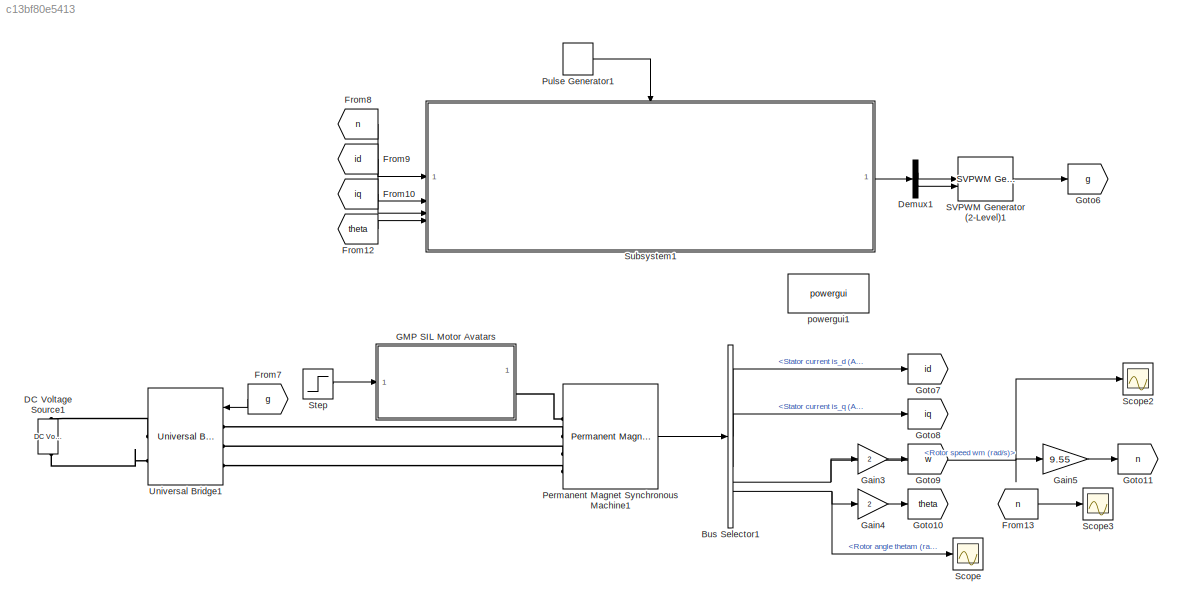
MODEL slx_c13bf80e5413
KIND model
CONFIG AbsTol = auto
CONFIG EnableMultiTasking = off
CONFIG FixedStep = 1e-6
CONFIG MaxStep = auto
CONFIG MinStep = auto
CONFIG RelTol = 1e-3
CONFIG SampleTimeConstraint = Unconstrained
CONFIG SolverName = FixedStepAuto
CONFIG StartTime = 0.0
CONFIG StopTime = 0.1
BLOCK [BusSelector] Bus Selector1
  OutputSignals = Stator current is_d (A),Stator current is_q (A),Rotor speed wm (rad/s),Rotor angle thetam (rad)
BLOCK [Reference] DC Voltage Source1  REF=spsDCVoltageSourceLib/DC Voltage Source
  LibrarySourceBlock = sps_lib/Sources/DC Voltage Source
  SourceBlock = spsDCVoltageSourceLib/DC Voltage Source
  SourceType = DC Voltage Source
BLOCK [Demux] Demux1
  Outputs = 2
BLOCK [From] From10
  GotoTag = iq
BLOCK [From] From12
  GotoTag = theta
BLOCK [From] From13
  GotoTag = n
BLOCK [From] From7
  GotoTag = g
  NameLocation = top
BLOCK [From] From8
  GotoTag = n
BLOCK [From] From9
  GotoTag = id
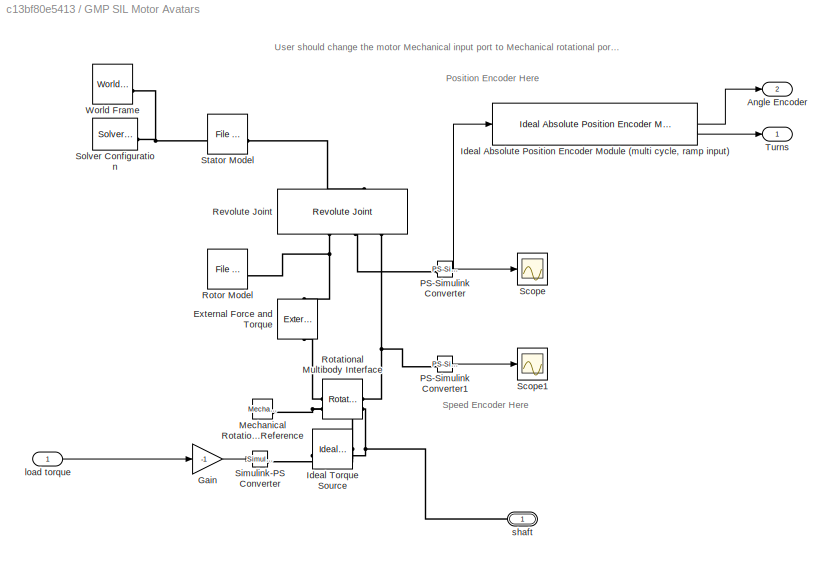
BLOCK [SubSystem] GMP SIL Motor Avatars
  PortSchema = {"entries":[{"content":{"sides":[{"content":{"connectorIds":["In1"]},"type":"ConnectorPlacement.EquallySpacedRectSide","uuid":"93fd98c8-22a3-43d8-9c64-5fedb21a7bba"},{"content":{"connectorIds":["RConn1"],"side":"RIGHT"},"type":"ConnectorPlacement.EquallySpacedRectSide","uuid":"d117f16d-9ccc-4fe6-b623-9fd4cd524b7a"},{"content":{"connectorIds":["Out1","Out2"],"side":"TOP"},"type":"ConnectorPlacement...<+255ch>
BLOCK [Outport] GMP SIL Motor Avatars/Angle Encoder
  Port = 2
BLOCK [Reference] GMP SIL Motor Avatars/External Force and Torque  REF=sm_lib/Forces and
Torques/External Force
and Torque
  NameLocation = right
  SourceBlock = sm_lib/Forces and\nTorques/External Force\nand Torque
  SourceType = External Force\nand Torque
BLOCK [Gain] GMP SIL Motor Avatars/Gain
  Gain = -1
BLOCK [Reference] GMP SIL Motor Avatars/Ideal Absolute Position Encoder Module (multi cycle, ramp input)  REF=peripheral_utilities/Ideal Absolute Position Encoder Module (multi cycle, ramp input)
  SourceBlock = peripheral_utilities/Ideal Absolute Position Encoder Module (multi cycle, ramp input)
  SourceProductName = Virtual Peripheral Utilities
BLOCK [Reference] GMP SIL Motor Avatars/Ideal Torque Source  REF=fl_lib/Mechanical/Mechanical Sources/Ideal Torque Source
  NameLocation = top
  SourceBlock = fl_lib/Mechanical/Mechanical Sources/Ideal Torque Source
  SourceType = Ideal Torque Source
BLOCK [Reference] GMP SIL Motor Avatars/Mechanical Rotational Reference  REF=fl_lib/Mechanical/Rotational Elements/Mechanical
Rotational Reference
  SourceBlock = fl_lib/Mechanical/Rotational Elements/Mechanical\nRotational Reference
  SourceType = Mechanical\nRotational Reference
BLOCK [Reference] GMP SIL Motor Avatars/PS-Simulink Converter  REF=nesl_utility/PS-Simulink
Converter
  SourceBlock = nesl_utility/PS-Simulink\nConverter
  SourceType = PS-Simulink\nConverter
BLOCK [Reference] GMP SIL Motor Avatars/PS-Simulink Converter1  REF=nesl_utility/PS-Simulink
Converter
  SourceBlock = nesl_utility/PS-Simulink\nConverter
  SourceType = PS-Simulink\nConverter
BLOCK [Reference] GMP SIL Motor Avatars/Revolute Joint  REF=sm_lib/Joints/Revolute Joint
  NameLocation = left
  SourceBlock = sm_lib/Joints/Revolute Joint
  SourceType = Revolute Joint
BLOCK [Reference] GMP SIL Motor Avatars/Rotational Multibody Interface  REF=fl_lib/Mechanical/Multibody Interfaces/Rotational Multibody
Interface
  SourceBlock = fl_lib/Mechanical/Multibody Interfaces/Rotational Multibody\nInterface
  SourceType = Rotational Multibody\nInterface
BLOCK [Reference] GMP SIL Motor Avatars/Rotor Model  REF=sm_lib/Body Elements/File Solid
  SourceBlock = sm_lib/Body Elements/File Solid
  SourceType = File Solid
BLOCK [Scope] GMP SIL Motor Avatars/Scope
  Floating = off
  NumInputPorts = 1
  ScopeSpecificationString = Simulink.scopes.TimeScopeBlockCfg('CurrentConfiguration', extmgr.ConfigurationSet(extmgr.Configuration('Core','General UI',true),extmgr.Configuration('Core','Source UI',true),extmgr.Configuration('Sources','WiredSimulink',true),extmgr.Configuration('Visuals','Time Domain',true,'SerializedDisplays',{struct('MinYLimReal','-1.07252','MaxYLimReal','9.6527','YLabelReal','','MinYLimMag','0.00000','MaxYL...<+1484ch>
BLOCK [Scope] GMP SIL Motor Avatars/Scope1
  Floating = off
  NumInputPorts = 1
  ScopeSpecificationString = Simulink.scopes.TimeScopeBlockCfg('CurrentConfiguration', extmgr.ConfigurationSet(extmgr.Configuration('Core','General UI',true),extmgr.Configuration('Core','Source UI',true),extmgr.Configuration('Sources','WiredSimulink',true,'DataLoggingVariableName','ScopeData1'),extmgr.Configuration('Visuals','Time Domain',true,'SerializedDisplays',{struct('MinYLimReal','-16.06081','MaxYLimReal','144.54728','Y...<+1557ch>
BLOCK [Reference] GMP SIL Motor Avatars/Simulink-PS Converter  REF=nesl_utility/Simulink-PS
Converter
  SourceBlock = nesl_utility/Simulink-PS\nConverter
  SourceType = Simulink-PS\nConverter
BLOCK [Reference] GMP SIL Motor Avatars/Solver Configuration  REF=nesl_utility/Solver
Configuration
  SourceBlock = nesl_utility/Solver\nConfiguration
  SourceType = Solver\nConfiguration
BLOCK [Reference] GMP SIL Motor Avatars/Stator Model  REF=sm_lib/Body Elements/File Solid
  SourceBlock = sm_lib/Body Elements/File Solid
  SourceType = File Solid
BLOCK [Outport] GMP SIL Motor Avatars/Turns
BLOCK [Reference] GMP SIL Motor Avatars/World Frame  REF=sm_lib/Frames and
Transforms/World Frame
  SourceBlock = sm_lib/Frames and\nTransforms/World Frame
  SourceType = World Frame
BLOCK [Inport] GMP SIL Motor Avatars/load torque
BLOCK [PMIOPort] GMP SIL Motor Avatars/shaft
  Side = Right
BLOCK [Gain] Gain3
  Gain = 2
BLOCK [Gain] Gain4
  Gain = 2
BLOCK [Gain] Gain5
  Gain = 9.55
BLOCK [Goto] Goto10
  GotoTag = theta
BLOCK [Goto] Goto11
  GotoTag = n
BLOCK [Goto] Goto6
  GotoTag = g
BLOCK [Goto] Goto7
  GotoTag = id
BLOCK [Goto] Goto8
  GotoTag = iq
BLOCK [Goto] Goto9
  GotoTag = w
BLOCK [Reference] Permanent Magnet Synchronous Machine1  REF=spsPermanentMagnetSynchronousMachineLib/Permanent Magnet
Synchronous Machine
  LibrarySourceBlock = sps_lib/Electrical Machines/Permanent Magnet\nSynchronous Machine
  SourceBlock = spsPermanentMagnetSynchronousMachineLib/Permanent Magnet\nSynchronous Machine
  SourceType = Permanent Magnet Synchronous Machine
BLOCK [DiscretePulseGenerator] Pulse Generator1
  Period = 1e-4
  PhaseDelay = 0.5e-4
  PulseType = Time based
  PulseWidth = 5
BLOCK [Reference] SVPWM Generator (2-Level)1  REF=spsSVPWMGenerator2LevelLib/SVPWM Generator
(2-Level)
  LibrarySourceBlock = sps_lib/Power Electronics/Power Electronics Control/SVPWM Generator\n(2-Level)
  SourceBlock = spsSVPWMGenerator2LevelLib/SVPWM Generator\n(2-Level)
  SourceType = SVPWM Generator (2-Level)
BLOCK [Scope] Scope
  Floating = off
  NumInputPorts = 1
  ScopeSpecificationString = Simulink.scopes.TimeScopeBlockCfg('CurrentConfiguration', extmgr.ConfigurationSet(extmgr.Configuration('Core','General UI',true),extmgr.Configuration('Core','Source UI',true),extmgr.Configuration('Sources','WiredSimulink',true,'DataLoggingVariableName','ScopeData1'),extmgr.Configuration('Visuals','Time Domain',true,'SerializedDisplays',{struct('MinYLimReal','-1.06372','MaxYLimReal','9.57346','YLab...<+1529ch>
BLOCK [Scope] Scope2
  Floating = off
  NumInputPorts = 1
  ScopeSpecificationString = Simulink.scopes.TimeScopeBlockCfg('CurrentConfiguration', extmgr.ConfigurationSet(extmgr.Configuration('Core','General UI',true),extmgr.Configuration('Core','Source UI',true),extmgr.Configuration('Sources','WiredSimulink',true,'DataLoggingVariableName','ScopeData2'),extmgr.Configuration('Visuals','Time Domain',true,'SerializedDisplays',{struct('MinYLimReal','-12.71075','MaxYLimReal','114.39675','Y...<+1513ch>
BLOCK [Scope] Scope3
  Floating = off
  NumInputPorts = 1
  ScopeSpecificationString = Simulink.scopes.TimeScopeBlockCfg('CurrentConfiguration', extmgr.ConfigurationSet(extmgr.Configuration('Core','General UI',true),extmgr.Configuration('Core','Source UI',true),extmgr.Configuration('Sources','WiredSimulink',true,'DataLoggingVariableName','ScopeData3'),extmgr.Configuration('Visuals','Time Domain',true,'SerializedDisplays',{struct('MinYLimReal','-123.16954','MaxYLimReal','1108.52582',...<+1503ch>
BLOCK [Step] Step
  SampleTime = 0
  Time = 0.05
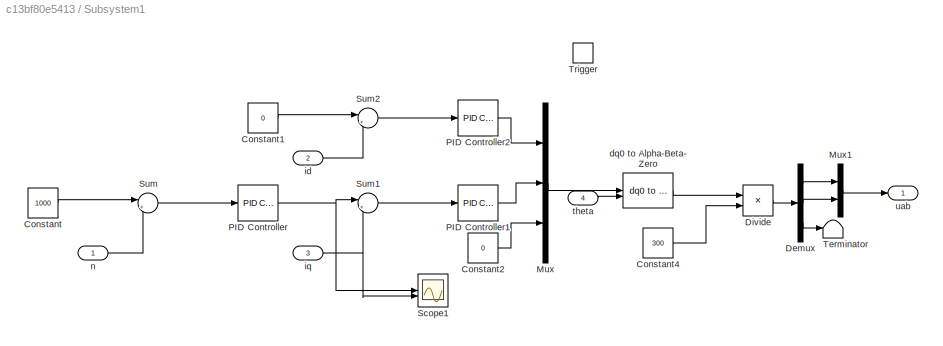
BLOCK [SubSystem] Subsystem1
BLOCK [Constant] Subsystem1/Constant
  Value = 1000
BLOCK [Constant] Subsystem1/Constant1
  Value = 0
BLOCK [Constant] Subsystem1/Constant2
  Value = 0
BLOCK [Constant] Subsystem1/Constant4
  Value = 300
BLOCK [Demux] Subsystem1/Demux
  Outputs = 3
BLOCK [Product] Subsystem1/Divide
  Inputs = */
BLOCK [Mux] Subsystem1/Mux
  DisplayOption = bar
  Inputs = 3
BLOCK [Mux] Subsystem1/Mux1
  DisplayOption = bar
  Inputs = 2
BLOCK [Reference] Subsystem1/PID Controller  REF=slpidlib/PID Controller
  LibrarySourceBlock = simulink/Continuous/PID Controller
  SourceBlock = slpidlib/PID Controller
  SourceType = PID 1dof
BLOCK [Reference] Subsystem1/PID Controller1  REF=slpidlib/PID Controller
  LibrarySourceBlock = simulink/Continuous/PID Controller
  SourceBlock = slpidlib/PID Controller
  SourceType = PID 1dof
BLOCK [Reference] Subsystem1/PID Controller2  REF=slpidlib/PID Controller
  LibrarySourceBlock = simulink/Continuous/PID Controller
  SourceBlock = slpidlib/PID Controller
  SourceType = PID 1dof
BLOCK [Scope] Subsystem1/Scope1
  Floating = off
  NumInputPorts = 2
  ScopeSpecificationString = Simulink.scopes.TimeScopeBlockCfg('CurrentConfiguration', extmgr.ConfigurationSet(extmgr.Configuration('Core','General UI',true),extmgr.Configuration('Core','Source UI',true),extmgr.Configuration('Sources','WiredSimulink',true,'DataLoggingVariableName','ScopeData1'),extmgr.Configuration('Visuals','Time Domain',true,'SerializedDisplays',{struct('MinYLimReal','-2.39115','MaxYLimReal','11.37679','YLa...<+1382ch>
BLOCK [Sum] Subsystem1/Sum
  Inputs = |+-
BLOCK [Sum] Subsystem1/Sum1
  Inputs = |+-
BLOCK [Sum] Subsystem1/Sum2
  Inputs = |+-
BLOCK [Terminator] Subsystem1/Terminator
BLOCK [TriggerPort] Subsystem1/Trigger
  PortDimensions = 1
  StatesWhenEnabling = held
  VariantControl = (inherit)
BLOCK [Reference] Subsystem1/dq0 to Alpha-Beta-Zero  REF=spsdq0toAlphaBetaZeroLib/dq0 to
Alpha-Beta-Zero
  LibrarySourceBlock = sps_lib/Control/dq0 to\nAlpha-Beta-Zero
  SourceBlock = spsdq0toAlphaBetaZeroLib/dq0 to\nAlpha-Beta-Zero
  SourceType = dq0 to Alpha-Beta-Zero Transformation
BLOCK [Inport] Subsystem1/id
  Port = 2
BLOCK [Inport] Subsystem1/iq
  Port = 3
BLOCK [Inport] Subsystem1/n
BLOCK [Inport] Subsystem1/theta
  Port = 4
BLOCK [Outport] Subsystem1/uab
BLOCK [Reference] Universal Bridge1  REF=spsUniversalBridgeLib/Universal Bridge
  LibrarySourceBlock = sps_lib/Power Electronics/Universal Bridge
  SourceBlock = spsUniversalBridgeLib/Universal Bridge
  SourceType = Universal Bridge
BLOCK [Reference] powergui1  REF=sps_lib/powergui
  LibrarySourceBlock = sps_lib/powergui
  Priority = 1
  SourceBlock = sps_lib/powergui
  SourceType = PSB option menu block
ANNOTATION GMP SIL Motor Avatars: Position Encoder Here
ANNOTATION GMP SIL Motor Avatars: Speed Encoder Here
ANNOTATION GMP SIL Motor Avatars: User should change the motor Mechanical input port to Mechanical rotational port first.
LINE Bus Selector1:1 -> Goto7:1
LINE Bus Selector1:2 -> Goto8:1
NET Bus Selector1:3 -> Gain3:1, Gain5:1, Scope2:1
NET Bus Selector1:4 -> Gain4:1, Scope:1
LINE Demux1:1 -> SVPWM Generator (2-Level)1:1
LINE Demux1:2 -> SVPWM Generator (2-Level)1:2
LINE From10:1 -> Subsystem1:3
LINE From12:1 -> Subsystem1:4
LINE From13:1 -> Scope3:1
LINE From7:1 -> Universal Bridge1:1
LINE From8:1 -> Subsystem1:1
LINE From9:1 -> Subsystem1:2
LINE GMP SIL Motor Avatars/Gain:1 -> GMP SIL Motor Avatars/Simulink-PS Converter:1
LINE GMP SIL Motor Avatars/Ideal Absolute Position Encoder Module (multi cycle, ramp input):1 -> GMP SIL Motor Avatars/Angle Encoder:1
LINE GMP SIL Motor Avatars/Ideal Absolute Position Encoder Module (multi cycle, ramp input):2 -> GMP SIL Motor Avatars/Turns:1
LINE GMP SIL Motor Avatars/PS-Simulink Converter1:1 -> GMP SIL Motor Avatars/Scope1:1
NET GMP SIL Motor Avatars/PS-Simulink Converter:1 -> GMP SIL Motor Avatars/Ideal Absolute Position Encoder Module (multi cycle, ramp input):1, GMP SIL Motor Avatars/Scope:1
LINE GMP SIL Motor Avatars/load torque:1 -> GMP SIL Motor Avatars/Gain:1
LINE Gain3:1 -> Goto9:1
LINE Gain4:1 -> Goto10:1
LINE Gain5:1 -> Goto11:1
LINE Permanent Magnet Synchronous Machine1:1 -> Bus Selector1:1
LINE Pulse Generator1:1 -> Subsystem1:trigger
LINE SVPWM Generator (2-Level)1:1 -> Goto6:1
LINE Step:1 -> GMP SIL Motor Avatars:1
LINE Subsystem1/Constant1:1 -> Subsystem1/Sum2:1
LINE Subsystem1/Constant2:1 -> Subsystem1/Mux:3
LINE Subsystem1/Constant4:1 -> Subsystem1/Divide:2
LINE Subsystem1/Constant:1 -> Subsystem1/Sum:1
LINE Subsystem1/Demux:1 -> Subsystem1/Mux1:1
LINE Subsystem1/Demux:2 -> Subsystem1/Mux1:2
LINE Subsystem1/Demux:3 -> Subsystem1/Terminator:1
LINE Subsystem1/Divide:1 -> Subsystem1/Demux:1
LINE Subsystem1/Mux1:1 -> Subsystem1/uab:1
LINE Subsystem1/Mux:1 -> Subsystem1/dq0 to Alpha-Beta-Zero:1
LINE Subsystem1/PID Controller1:1 -> Subsystem1/Mux:2
LINE Subsystem1/PID Controller2:1 -> Subsystem1/Mux:1
NET Subsystem1/PID Controller:1 -> Subsystem1/Scope1:1, Subsystem1/Sum1:1
LINE Subsystem1/Sum1:1 -> Subsystem1/PID Controller1:1
LINE Subsystem1/Sum2:1 -> Subsystem1/PID Controller2:1
LINE Subsystem1/Sum:1 -> Subsystem1/PID Controller:1
LINE Subsystem1/dq0 to Alpha-Beta-Zero:1 -> Subsystem1/Divide:1
LINE Subsystem1/id:1 -> Subsystem1/Sum2:2
NET Subsystem1/iq:1 -> Subsystem1/Scope1:2, Subsystem1/Sum1:2
LINE Subsystem1/n:1 -> Subsystem1/Sum:2
LINE Subsystem1/theta:1 -> Subsystem1/dq0 to Alpha-Beta-Zero:2
LINE Subsystem1:1 -> Demux1:1
PLINE DC Voltage Source1:LConn1 -- Universal Bridge1:RConn2
PLINE DC Voltage Source1:RConn1 -- Universal Bridge1:RConn1
PLINE GMP SIL Motor Avatars/External Force and Torque:LConn1 -- GMP SIL Motor Avatars/Rotational Multibody Interface:LConn1
PNET net1: GMP SIL Motor Avatars/External Force and Torque:RConn1 -- GMP SIL Motor Avatars/Revolute Joint:RConn1 -- GMP SIL Motor Avatars/Rotor Model:LConn1
PNET net2: GMP SIL Motor Avatars/Ideal Torque Source:LConn1 -- GMP SIL Motor Avatars/Rotational Multibody Interface:RConn2 -- GMP SIL Motor Avatars/shaft:RConn1
PLINE GMP SIL Motor Avatars/Ideal Torque Source:RConn1 -- GMP SIL Motor Avatars/Simulink-PS Converter:RConn1
PNET net3: GMP SIL Motor Avatars/Ideal Torque Source:RConn2 -- GMP SIL Motor Avatars/Mechanical Rotational Reference:LConn1 -- GMP SIL Motor Avatars/Rotational Multibody Interface:LConn2
PNET net4: GMP SIL Motor Avatars/PS-Simulink Converter1:LConn1 -- GMP SIL Motor Avatars/Revolute Joint:RConn3 -- GMP SIL Motor Avatars/Rotational Multibody Interface:RConn1
PLINE GMP SIL Motor Avatars/PS-Simulink Converter:LConn1 -- GMP SIL Motor Avatars/Revolute Joint:RConn2
PLINE GMP SIL Motor Avatars/Revolute Joint:LConn1 -- GMP SIL Motor Avatars/Stator Model:LConn1
PNET net5: GMP SIL Motor Avatars/Solver Configuration:RConn1 -- GMP SIL Motor Avatars/Stator Model:RConn1 -- GMP SIL Motor Avatars/World Frame:RConn1
PLINE GMP SIL Motor Avatars:RConn1 -- Permanent Magnet Synchronous Machine1:LConn1
PLINE Permanent Magnet Synchronous Machine1:LConn2 -- Universal Bridge1:LConn1
PLINE Permanent Magnet Synchronous Machine1:LConn3 -- Universal Bridge1:LConn2
PLINE Permanent Magnet Synchronous Machine1:LConn4 -- Universal Bridge1:LConn3
note: NET lines group one-source signal fan-out (src -> all destinations, sorted); 1:1 wires keep LINE; PNET lines group multi-terminal physical nets as a canonical sorted terminal list (undirected conserving connections); 2-terminal nets keep the pairwise PLINE form
